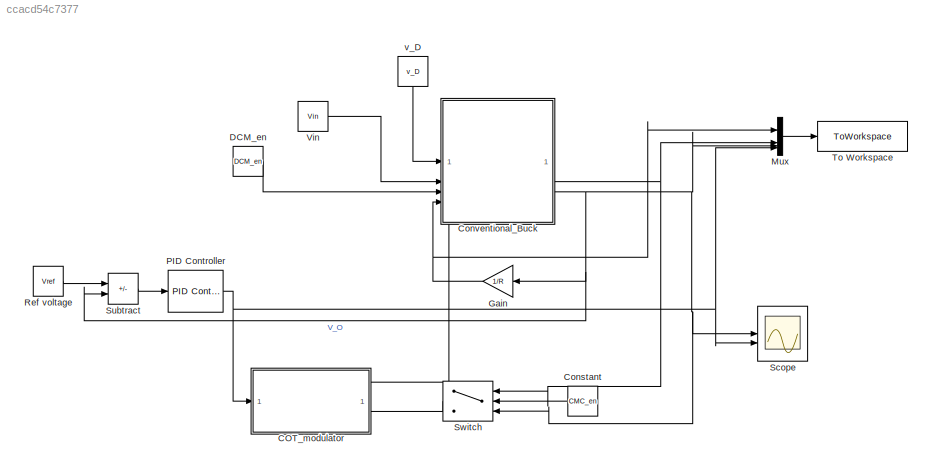
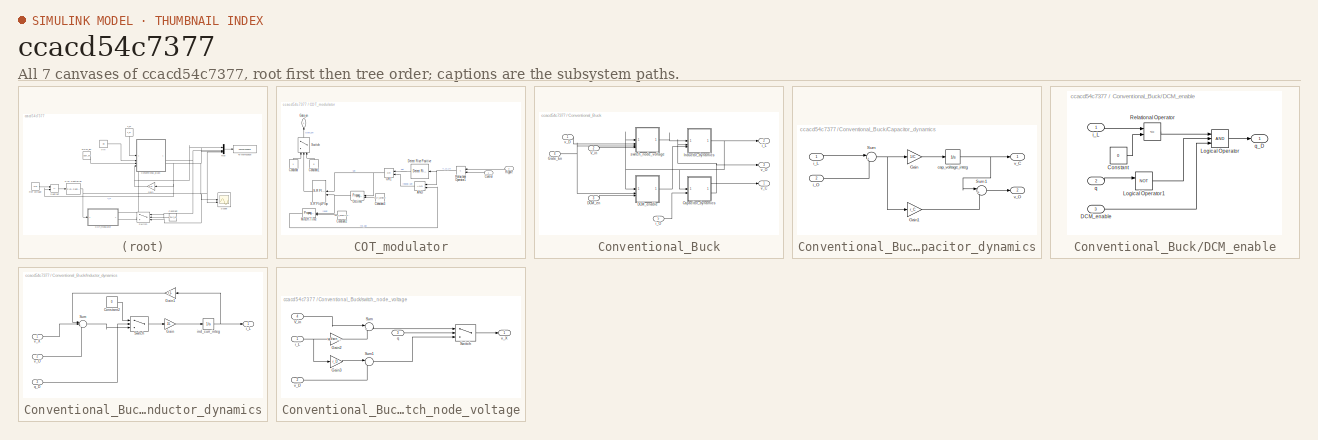
[diagram: thumbnail index - all 7 canvases of the model, root first then tree order]
MODEL slx_ccacd54c7377
KIND model
CONFIG AbsTol = auto
CONFIG EnableMultiTasking = off
CONFIG FixedStep = auto
CONFIG MaxStep = Tstep_max
CONFIG MinStep = auto
CONFIG RelTol = RelTol
CONFIG SampleTimeConstraint = Unconstrained
CONFIG SolverName = ode23t
CONFIG StartTime = 0.0
CONFIG StopTime = Tsim
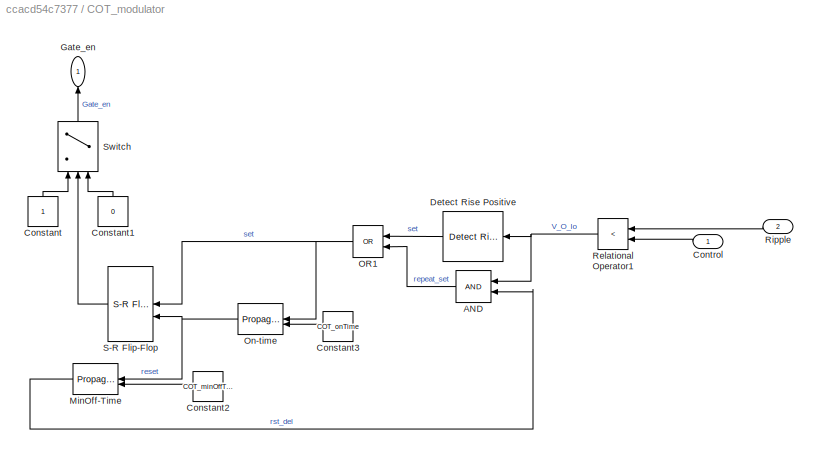
BLOCK [SubSystem] COT_modulator
  PortSchema = {"entries":[{"content":{"sides":[{"content":{"connectorIds":["In1"]},"type":"ConnectorPlacement.EquallySpacedRectSide","uuid":"9ac7bde2-7f7d-4cc1-8d95-af26a88ce256"},{"content":{"connectorIds":["In2"],"side":"RIGHT"},"type":"ConnectorPlacement.EquallySpacedRectSide","uuid":"fdcfee6a-682f-4e93-88a2-6f56cbf72930"},{"content":{"connectorIds":["Out1"],"side":"TOP"},"type":"ConnectorPlacement.EquallySp...<+245ch>
BLOCK [Logic] COT_modulator/AND
  AllPortsSameDT = off
  IconShape = distinctive
  OutDataTypeStr = boolean
BLOCK [Constant] COT_modulator/Constant
  NameLocation = right
BLOCK [Constant] COT_modulator/Constant1
  NameLocation = right
  Value = 0
BLOCK [Constant] COT_modulator/Constant2
  Value = COT_minOffTime
BLOCK [Constant] COT_modulator/Constant3
  Value = COT_onTime
BLOCK [Inport] COT_modulator/Control
BLOCK [Reference] COT_modulator/Detect Rise Positive  REF=simulink/Logic and Bit
Operations/Detect Rise
Positive
  SourceBlock = simulink/Logic and Bit\nOperations/Detect Rise\nPositive
  SourceType = Detect Rise Positive
BLOCK [Outport] COT_modulator/Gate_en
  NameLocation = right
BLOCK [PropagationDelay] COT_modulator/MinOff-Time
BLOCK [Logic] COT_modulator/OR1
  AllPortsSameDT = off
  IconShape = distinctive
  Operator = OR
  OutDataTypeStr = boolean
BLOCK [PropagationDelay] COT_modulator/On-time
BLOCK [RelationalOperator] COT_modulator/Relational Operator1
  InputSameDT = off
  Operator = <
  OutDataTypeStr = boolean
  RndMeth = Simplest
BLOCK [Inport] COT_modulator/Ripple
  Port = 2
BLOCK [Reference] COT_modulator/S-R Flip-Flop  REF=simulink_extras/Flip Flops/S-R
Flip-Flop
  SourceBlock = simulink_extras/Flip Flops/S-R\nFlip-Flop
  SourceType = SRFlipFlop
BLOCK [Switch] COT_modulator/Switch
  Criteria = u2 > Threshold
  InputSameDT = off
  NameLocation = right
  SaturateOnIntegerOverflow = off
BLOCK [Constant] Constant
  Value = CMC_en
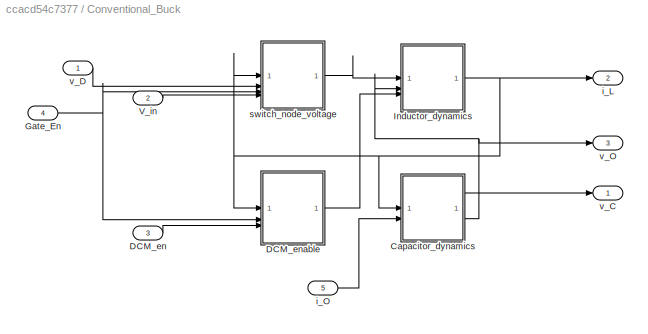
BLOCK [SubSystem] Conventional_Buck
BLOCK [SubSystem] Conventional_Buck/Capacitor_dynamics
BLOCK [Gain] Conventional_Buck/Capacitor_dynamics/Gain
  Gain = 1/C
BLOCK [Gain] Conventional_Buck/Capacitor_dynamics/Gain1
  Gain = r_C
BLOCK [Sum] Conventional_Buck/Capacitor_dynamics/Sum
  Inputs = |+-
BLOCK [Sum] Conventional_Buck/Capacitor_dynamics/Sum1
  Inputs = |++
BLOCK [Integrator] Conventional_Buck/Capacitor_dynamics/cap_voltage_integ
  InitialCondition = V_C_int
BLOCK [Inport] Conventional_Buck/Capacitor_dynamics/i_L
BLOCK [Inport] Conventional_Buck/Capacitor_dynamics/i_O
  Port = 2
BLOCK [Outport] Conventional_Buck/Capacitor_dynamics/v_C
BLOCK [Outport] Conventional_Buck/Capacitor_dynamics/v_O
  Port = 2
BLOCK [Inport] Conventional_Buck/DCM_en
  Port = 3
BLOCK [SubSystem] Conventional_Buck/DCM_enable
BLOCK [Constant] Conventional_Buck/DCM_enable/Constant
  Value = 0
BLOCK [Inport] Conventional_Buck/DCM_enable/DCM_enable
  Port = 3
BLOCK [Logic] Conventional_Buck/DCM_enable/Logical Operator
  AllPortsSameDT = off
  Inputs = 3
  OutDataTypeStr = boolean
BLOCK [Logic] Conventional_Buck/DCM_enable/Logical Operator1
  AllPortsSameDT = off
  Operator = NOT
  OutDataTypeStr = boolean
BLOCK [RelationalOperator] Conventional_Buck/DCM_enable/Relational Operator
  InputSameDT = off
  Operator = <=
  OutDataTypeStr = boolean
  RndMeth = Simplest
BLOCK [Inport] Conventional_Buck/DCM_enable/i_L
BLOCK [Inport] Conventional_Buck/DCM_enable/q
  Port = 2
BLOCK [Outport] Conventional_Buck/DCM_enable/q_D
BLOCK [Inport] Conventional_Buck/Gate_En
  Port = 4
BLOCK [SubSystem] Conventional_Buck/Inductor_dynamics
BLOCK [Constant] Conventional_Buck/Inductor_dynamics/Constant2
  Value = 0
BLOCK [Gain] Conventional_Buck/Inductor_dynamics/Gain
  Gain = 1/L
BLOCK [Gain] Conventional_Buck/Inductor_dynamics/Gain1
  Gain = r_L
BLOCK [Sum] Conventional_Buck/Inductor_dynamics/Sum
  Inputs = |-+-
BLOCK [Switch] Conventional_Buck/Inductor_dynamics/Switch
  Criteria = u2 > Threshold
  InputSameDT = off
  SaturateOnIntegerOverflow = off
  Threshold = 0.5
BLOCK [Outport] Conventional_Buck/Inductor_dynamics/i_L
BLOCK [Integrator] Conventional_Buck/Inductor_dynamics/ind_curr_integ
  InitialCondition = I_L_int
BLOCK [Inport] Conventional_Buck/Inductor_dynamics/q_D
  Port = 3
BLOCK [Inport] Conventional_Buck/Inductor_dynamics/v_O
  Port = 2
BLOCK [Inport] Conventional_Buck/Inductor_dynamics/v_X
BLOCK [Inport] Conventional_Buck/V_in
  Port = 2
BLOCK [Outport] Conventional_Buck/i_L
  Port = 2
BLOCK [Inport] Conventional_Buck/i_O
  Port = 5
BLOCK [SubSystem] Conventional_Buck/switch_node_voltage
BLOCK [Gain] Conventional_Buck/switch_node_voltage/Gain2
  Gain = r_dson_top
BLOCK [Gain] Conventional_Buck/switch_node_voltage/Gain3
  Gain = r_D
BLOCK [Sum] Conventional_Buck/switch_node_voltage/Sum
  Inputs = |+-
BLOCK [Sum] Conventional_Buck/switch_node_voltage/Sum1
  Inputs = |--
BLOCK [Switch] Conventional_Buck/switch_node_voltage/Switch
  Criteria = u2 > Threshold
  InputSameDT = off
  SaturateOnIntegerOverflow = off
  Threshold = 0.5
BLOCK [Inport] Conventional_Buck/switch_node_voltage/V_in
  Port = 4
BLOCK [Inport] Conventional_Buck/switch_node_voltage/i_L
BLOCK [Inport] Conventional_Buck/switch_node_voltage/q
  Port = 3
BLOCK [Inport] Conventional_Buck/switch_node_voltage/v_D
  Port = 2
BLOCK [Outport] Conventional_Buck/switch_node_voltage/v_X
BLOCK [Outport] Conventional_Buck/v_C
BLOCK [Inport] Conventional_Buck/v_D
BLOCK [Outport] Conventional_Buck/v_O
  Port = 3
BLOCK [Constant] DCM_en
  NameLocation = top
  Value = DCM_en
BLOCK [Gain] Gain
  Gain = 1/R
BLOCK [Mux] Mux
  DisplayOption = bar
BLOCK [Reference] PID Controller  REF=slpidlib/PID Controller
  LibrarySourceBlock = simulink/Continuous/PID Controller
  SourceBlock = slpidlib/PID Controller
  SourceType = PID 1dof
BLOCK [Constant] Ref voltage
  Value = Vref
BLOCK [Scope] Scope
  Floating = off
  NumInputPorts = 2
  ScopeSpecificationString = Simulink.scopes.TimeScopeBlockCfg('CurrentConfiguration', extmgr.ConfigurationSet(extmgr.Configuration('Core','General UI',true),extmgr.Configuration('Core','Source UI',true),extmgr.Configuration('Sources','WiredSimulink',true),extmgr.Configuration('Visuals','Time Domain',true,'SerializedDisplays',{struct('MinYLimReal','-0.14159','MaxYLimReal','0.11662','YLabelReal','','MinYLimMag','0.00000','MaxY...<+1509ch>
BLOCK [Sum] Subtract
  IconShape = rectangular
  Inputs = +-
BLOCK [Switch] Switch
  Criteria = u2 > Threshold
  InputSameDT = off
  SaturateOnIntegerOverflow = off
BLOCK [ToWorkspace] To Workspace
  FixptAsFi = on
  MaxDataPoints = inf
  SampleTime = -1
  SaveFormat = Structure With Time
  VariableName = simout
BLOCK [Constant] Vin
  Value = Vin
BLOCK [Constant] v_D
  NameLocation = left
  Value = v_D
LINE COT_modulator/AND:1 -> COT_modulator/OR1:2
LINE COT_modulator/Constant1:1 -> COT_modulator/Switch:3
LINE COT_modulator/Constant2:1 -> COT_modulator/MinOff-Time:2
LINE COT_modulator/Constant3:1 -> COT_modulator/On-time:2
LINE COT_modulator/Constant:1 -> COT_modulator/Switch:1
LINE COT_modulator/Control:1 -> COT_modulator/Relational Operator1:2
LINE COT_modulator/Detect Rise Positive:1 -> COT_modulator/OR1:1
LINE COT_modulator/MinOff-Time:1 -> COT_modulator/AND:2
NET COT_modulator/OR1:1 -> COT_modulator/On-time:1, COT_modulator/S-R Flip-Flop:1
NET COT_modulator/On-time:1 -> COT_modulator/MinOff-Time:1, COT_modulator/S-R Flip-Flop:2
NET COT_modulator/Relational Operator1:1 -> COT_modulator/AND:1, COT_modulator/Detect Rise Positive:1
LINE COT_modulator/Ripple:1 -> COT_modulator/Relational Operator1:1
LINE COT_modulator/S-R Flip-Flop:1 -> COT_modulator/Switch:2
LINE COT_modulator/Switch:1 -> COT_modulator/Gate_en:1
LINE COT_modulator:1 -> Conventional_Buck:4
LINE Constant:1 -> Switch:2
LINE Conventional_Buck/Capacitor_dynamics/Gain1:1 -> Conventional_Buck/Capacitor_dynamics/Sum1:2
LINE Conventional_Buck/Capacitor_dynamics/Gain:1 -> Conventional_Buck/Capacitor_dynamics/cap_voltage_integ:1
LINE Conventional_Buck/Capacitor_dynamics/Sum1:1 -> Conventional_Buck/Capacitor_dynamics/v_O:1
NET Conventional_Buck/Capacitor_dynamics/Sum:1 -> Conventional_Buck/Capacitor_dynamics/Gain1:1, Conventional_Buck/Capacitor_dynamics/Gain:1
NET Conventional_Buck/Capacitor_dynamics/cap_voltage_integ:1 -> Conventional_Buck/Capacitor_dynamics/Sum1:1, Conventional_Buck/Capacitor_dynamics/v_C:1
LINE Conventional_Buck/Capacitor_dynamics/i_L:1 -> Conventional_Buck/Capacitor_dynamics/Sum:1
LINE Conventional_Buck/Capacitor_dynamics/i_O:1 -> Conventional_Buck/Capacitor_dynamics/Sum:2
LINE Conventional_Buck/Capacitor_dynamics:1 -> Conventional_Buck/v_C:1
NET Conventional_Buck/Capacitor_dynamics:2 -> Conventional_Buck/Inductor_dynamics:2, Conventional_Buck/v_O:1
LINE Conventional_Buck/DCM_en:1 -> Conventional_Buck/DCM_enable:3
LINE Conventional_Buck/DCM_enable/Constant:1 -> Conventional_Buck/DCM_enable/Relational Operator:2
LINE Conventional_Buck/DCM_enable/DCM_enable:1 -> Conventional_Buck/DCM_enable/Logical Operator:3
LINE Conventional_Buck/DCM_enable/Logical Operator1:1 -> Conventional_Buck/DCM_enable/Logical Operator:2
LINE Conventional_Buck/DCM_enable/Logical Operator:1 -> Conventional_Buck/DCM_enable/q_D:1
LINE Conventional_Buck/DCM_enable/Relational Operator:1 -> Conventional_Buck/DCM_enable/Logical Operator:1
LINE Conventional_Buck/DCM_enable/i_L:1 -> Conventional_Buck/DCM_enable/Relational Operator:1
LINE Conventional_Buck/DCM_enable/q:1 -> Conventional_Buck/DCM_enable/Logical Operator1:1
LINE Conventional_Buck/DCM_enable:1 -> Conventional_Buck/Inductor_dynamics:3
NET Conventional_Buck/Gate_En:1 -> Conventional_Buck/DCM_enable:2, Conventional_Buck/switch_node_voltage:3
LINE Conventional_Buck/Inductor_dynamics/Constant2:1 -> Conventional_Buck/Inductor_dynamics/Switch:1
LINE Conventional_Buck/Inductor_dynamics/Gain1:1 -> Conventional_Buck/Inductor_dynamics/Sum:1
LINE Conventional_Buck/Inductor_dynamics/Gain:1 -> Conventional_Buck/Inductor_dynamics/ind_curr_integ:1
LINE Conventional_Buck/Inductor_dynamics/Sum:1 -> Conventional_Buck/Inductor_dynamics/Switch:3
LINE Conventional_Buck/Inductor_dynamics/Switch:1 -> Conventional_Buck/Inductor_dynamics/Gain:1
NET Conventional_Buck/Inductor_dynamics/ind_curr_integ:1 -> Conventional_Buck/Inductor_dynamics/Gain1:1, Conventional_Buck/Inductor_dynamics/i_L:1
LINE Conventional_Buck/Inductor_dynamics/q_D:1 -> Conventional_Buck/Inductor_dynamics/Switch:2
LINE Conventional_Buck/Inductor_dynamics/v_O:1 -> Conventional_Buck/Inductor_dynamics/Sum:3
LINE Conventional_Buck/Inductor_dynamics/v_X:1 -> Conventional_Buck/Inductor_dynamics/Sum:2
NET Conventional_Buck/Inductor_dynamics:1 -> Conventional_Buck/Capacitor_dynamics:1, Conventional_Buck/DCM_enable:1, Conventional_Buck/i_L:1, Conventional_Buck/switch_node_voltage:1
LINE Conventional_Buck/V_in:1 -> Conventional_Buck/switch_node_voltage:4
LINE Conventional_Buck/i_O:1 -> Conventional_Buck/Capacitor_dynamics:2
LINE Conventional_Buck/switch_node_voltage/Gain2:1 -> Conventional_Buck/switch_node_voltage/Sum:2
LINE Conventional_Buck/switch_node_voltage/Gain3:1 -> Conventional_Buck/switch_node_voltage/Sum1:1
LINE Conventional_Buck/switch_node_voltage/Sum1:1 -> Conventional_Buck/switch_node_voltage/Switch:3
LINE Conventional_Buck/switch_node_voltage/Sum:1 -> Conventional_Buck/switch_node_voltage/Switch:1
LINE Conventional_Buck/switch_node_voltage/Switch:1 -> Conventional_Buck/switch_node_voltage/v_X:1
LINE Conventional_Buck/switch_node_voltage/V_in:1 -> Conventional_Buck/switch_node_voltage/Sum:1
NET Conventional_Buck/switch_node_voltage/i_L:1 -> Conventional_Buck/switch_node_voltage/Gain2:1, Conventional_Buck/switch_node_voltage/Gain3:1
LINE Conventional_Buck/switch_node_voltage/q:1 -> Conventional_Buck/switch_node_voltage/Switch:2
LINE Conventional_Buck/switch_node_voltage/v_D:1 -> Conventional_Buck/switch_node_voltage/Sum1:2
LINE Conventional_Buck/switch_node_voltage:1 -> Conventional_Buck/Inductor_dynamics:1
LINE Conventional_Buck/v_D:1 -> Conventional_Buck/switch_node_voltage:2
NET Conventional_Buck:2 -> Mux:2, Switch:1
NET Conventional_Buck:3 -> Gain:1, Mux:3, Scope:1, Subtract:2, Switch:3
LINE DCM_en:1 -> Conventional_Buck:3
NET Gain:1 -> Conventional_Buck:5, Mux:1
LINE Mux:1 -> To Workspace:1
NET PID Controller:1 -> COT_modulator:1, Mux:4, Scope:2
LINE Ref voltage:1 -> Subtract:1
LINE Subtract:1 -> PID Controller:1
LINE Switch:1 -> COT_modulator:2
LINE Vin:1 -> Conventional_Buck:2
LINE v_D:1 -> Conventional_Buck:1
note: NET lines group one-source signal fan-out (src -> all destinations, sorted); 1:1 wires keep LINE
